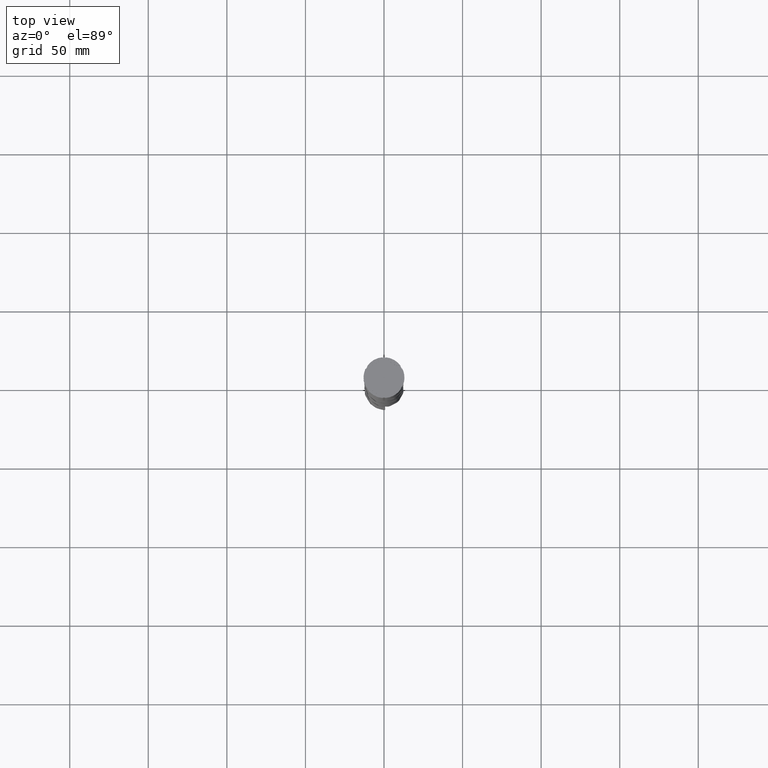
[diagram: clean part render]
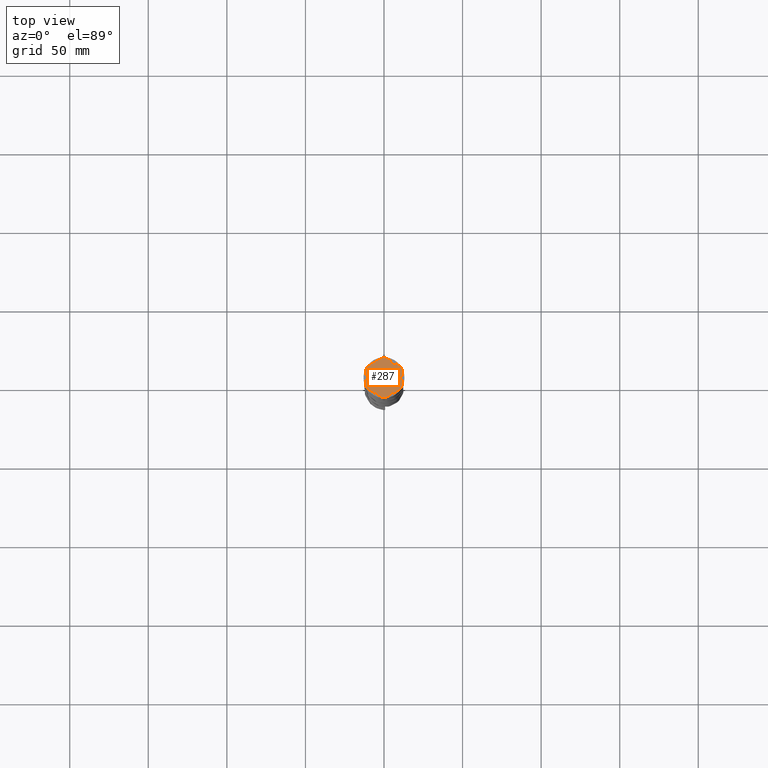
[diagram: same view with one face highlighted and labeled with its STEP entity id]
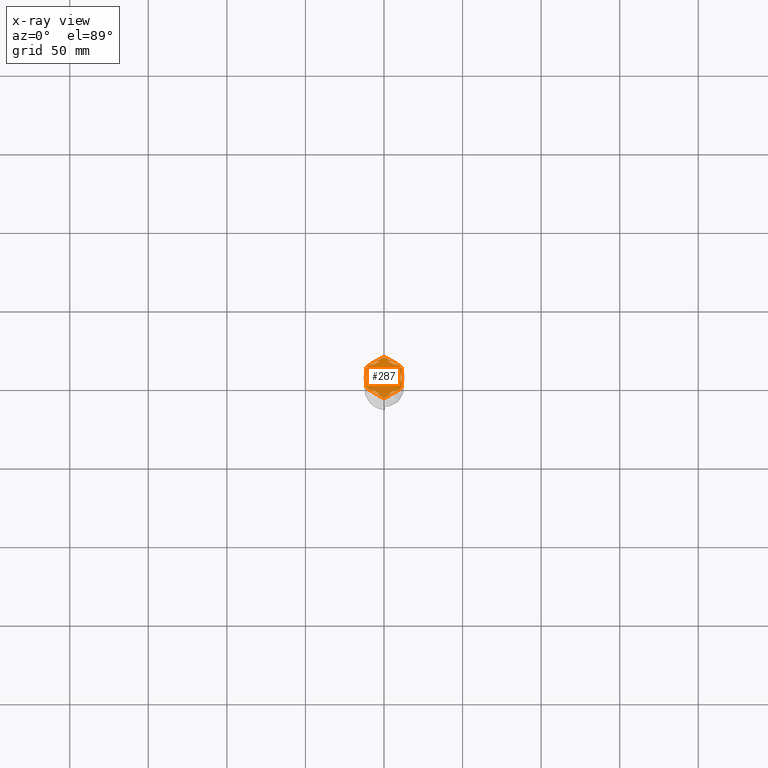
[diagram: x-ray of the same camera — body ghosted, the highlighted face saturated]
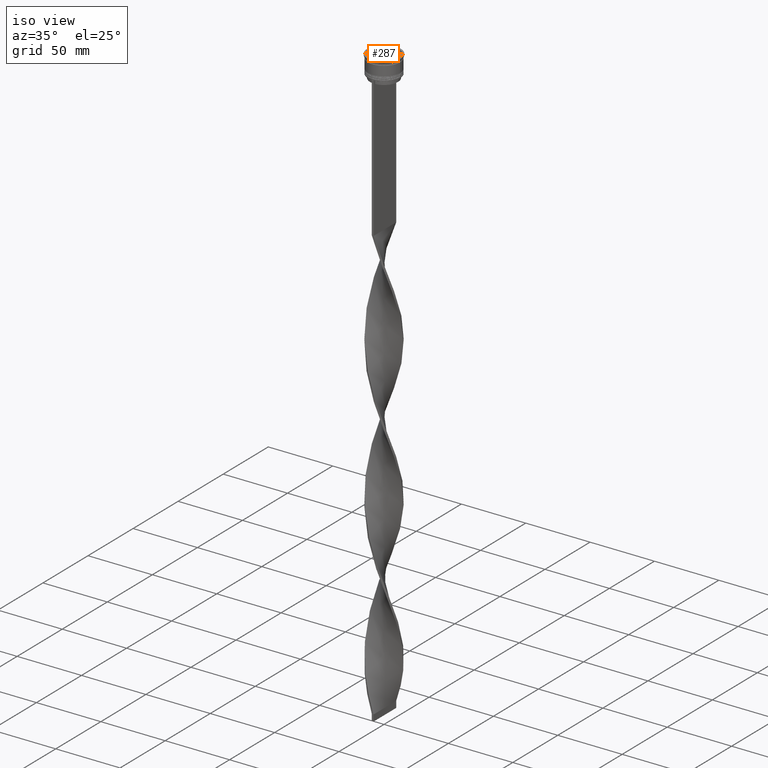
[diagram: same view with one face highlighted and labeled with its STEP entity id]
A machine part, top view. The second image highlights one B-rep face of the part: STEP entity #287.
The next image is the same camera in x-ray: the body ghosted, the highlighted face saturated — about 0% of this face is hidden behind the body in this view.
A second angle (iso view) of the same face is appended — the face is thin or edge-on in the first view.
In plain terms, the highlighted planar face has unit normal (0, 0, 1).
Its self-contained STEP definition (entity closure, byte-faithful):
#17 = ORIENTED_EDGE ( 'NONE', *, *, #30, .T. ) ;
#30 = EDGE_CURVE ( 'NONE', #3539, #4238, #3257, .T. ) ;
#39 = PLANE ( 'NONE',  #4548 ) ;
#42 = VECTOR ( 'NONE', #369, 1000.000000000000000 ) ;
#63 = EDGE_CURVE ( 'NONE', #3674, #2488, #780, .T. ) ;
#65 = VERTEX_POINT ( 'NONE', #2237 ) ;
#90 = CARTESIAN_POINT ( 'NONE',  ( -11.00000000000000000, 0.000000000000000000, -1.000000000000000000 ) ) ;
#95 = DIRECTION ( 'NONE',  ( -0.8660254037844388186, 0.4999999999999997224, 0.000000000000000000 ) ) ;
#129 = VERTEX_POINT ( 'NONE', #1174 ) ;
#150 = CARTESIAN_POINT ( 'NONE',  ( 5.612359739892467248E-18, -13.27905619136138959, -1.000000000000000000 ) ) ;
#169 = LINE ( 'NONE', #4427, #1408 ) ;
#229 = VERTEX_POINT ( 'NONE', #4228 ) ;
#287 = ADVANCED_FACE ( 'NONE', ( #3205, #3966, #2877, #1427, #3245, #4315, #3559 ), #39, .T. ) ;
#333 = CARTESIAN_POINT ( 'NONE',  ( 0.000000000000000000, 0.000000000000000000, -1.000000000000000000 ) ) ;
#335 = LINE ( 'NONE', #3954, #2450 ) ;
#349 = CIRCLE ( 'NONE', #3333, 11.00000000000000000 ) ;
#369 = DIRECTION ( 'NONE',  ( -0.8660254037844384856, 0.5000000000000002220, 0.000000000000000000 ) ) ;
#410 = VECTOR ( 'NONE', #95, 1000.000000000000000 ) ;
#468 = DIRECTION ( 'NONE',  ( 0.000000000000000000, 0.000000000000000000, 1.000000000000000000 ) ) ;
#469 = CARTESIAN_POINT ( 'NONE',  ( 0.000000000000000000, 0.000000000000000000, -1.000000000000000000 ) ) ;
#494 = CIRCLE ( 'NONE', #1020, 12.69999999999999929 ) ;
#497 = CARTESIAN_POINT ( 'NONE',  ( -2.410545827099867200, 10.73262637081210613, -1.000000000000000888 ) ) ;
#527 = DIRECTION ( 'NONE',  ( 0.000000000000000000, 0.000000000000000000, 1.000000000000000000 ) ) ;
#615 = ORIENTED_EDGE ( 'NONE', *, *, #3821, .F. ) ;
#627 = CARTESIAN_POINT ( 'NONE',  ( 0.000000000000000000, 0.000000000000000000, -1.000000000000000000 ) ) ;
#650 = VECTOR ( 'NONE', #2367, 999.9999999999998863 ) ;
#664 = CIRCLE ( 'NONE', #1250, 12.69999999999999929 ) ;
#690 = DIRECTION ( 'NONE',  ( 1.000000000000000000, 0.000000000000000000, 0.000000000000000000 ) ) ;
#736 = DIRECTION ( 'NONE',  ( 0.8660254037844385966, 0.5000000000000001110, -0.000000000000000000 ) ) ;
#762 = DIRECTION ( 'NONE',  ( 0.000000000000000000, 0.000000000000000000, 1.000000000000000000 ) ) ;
#780 = CIRCLE ( 'NONE', #1306, 12.69999999999999929 ) ;
#786 = DIRECTION ( 'NONE',  ( -0.000000000000000000, -0.000000000000000000, -1.000000000000000000 ) ) ;
#789 = EDGE_CURVE ( 'NONE', #4272, #984, #3487, .T. ) ;
#800 = DIRECTION ( 'NONE',  ( 1.000000000000000000, 0.000000000000000000, 0.000000000000000000 ) ) ;
#801 = DIRECTION ( 'NONE',  ( -0.000000000000000000, -0.000000000000000000, -1.000000000000000000 ) ) ;
#804 = CARTESIAN_POINT ( 'NONE',  ( 1.083095244168781557, 12.65373086058254160, -1.000000000000000000 ) ) ;
#829 = EDGE_CURVE ( 'NONE', #4317, #2312, #1676, .T. ) ;
#836 = VERTEX_POINT ( 'NONE', #2362 ) ;
#846 = LINE ( 'NONE', #150, #1996 ) ;
#868 = CIRCLE ( 'NONE', #2085, 12.69999999999999929 ) ;
#933 = EDGE_LOOP ( 'NONE', ( #2699, #615, #17, #3802, #1924, #2497, #1560, #1583, #1812, #4044, #3599, #4152 ) ) ;
#941 = AXIS2_PLACEMENT_3D ( 'NONE', #3367, #786, #1136 ) ;
#950 = EDGE_CURVE ( 'NONE', #2907, #836, #3083, .T. ) ;
#957 = AXIS2_PLACEMENT_3D ( 'NONE', #2406, #2050, #2687 ) ;
#984 = VERTEX_POINT ( 'NONE', #4174 ) ;
#985 = VERTEX_POINT ( 'NONE', #3388 ) ;
#988 = DIRECTION ( 'NONE',  ( 1.000000000000000000, 0.000000000000000000, 0.000000000000000000 ) ) ;
#995 = DIRECTION ( 'NONE',  ( 1.000000000000000000, 0.000000000000000000, 0.000000000000000000 ) ) ;
#1020 = AXIS2_PLACEMENT_3D ( 'NONE', #1103, #3594, #690 ) ;
#1072 = EDGE_CURVE ( 'NONE', #2841, #2312, #3032, .T. ) ;
#1103 = CARTESIAN_POINT ( 'NONE',  ( 0.000000000000000000, 0.000000000000000000, -1.000000000000000000 ) ) ;
#1133 = CARTESIAN_POINT ( 'NONE',  ( 0.000000000000000000, 0.000000000000000000, -1.000000000000000000 ) ) ;
#1136 = DIRECTION ( 'NONE',  ( 1.000000000000000000, 7.105427357601001859E-15, 0.000000000000000000 ) ) ;
#1165 = DIRECTION ( 'NONE',  ( -0.8660254037844387076, -0.4999999999999999445, 0.000000000000000000 ) ) ;
#1174 = CARTESIAN_POINT ( 'NONE',  ( 11.49999999999999822, 5.388877434122992582, -1.000000000000000000 ) ) ;
#1183 = ORIENTED_EDGE ( 'NONE', *, *, #1771, .F. ) ;
#1187 = VERTEX_POINT ( 'NONE', #3419 ) ;
#1236 = CIRCLE ( 'NONE', #2893, 11.00000000000000000 ) ;
#1250 = AXIS2_PLACEMENT_3D ( 'NONE', #3957, #3265, #2915 ) ;
#1272 = ORIENTED_EDGE ( 'NONE', *, *, #950, .F. ) ;
#1306 = AXIS2_PLACEMENT_3D ( 'NONE', #469, #801, #1608 ) ;
#1343 = ORIENTED_EDGE ( 'NONE', *, *, #2003, .F. ) ;
#1400 = VECTOR ( 'NONE', #1165, 999.9999999999998863 ) ;
#1408 = VECTOR ( 'NONE', #1508, 1000.000000000000114 ) ;
#1422 = LINE ( 'NONE', #4354, #42 ) ;
#1427 = FACE_BOUND ( 'NONE', #3433, .T. ) ;
#1436 = EDGE_CURVE ( 'NONE', #4317, #3310, #1908, .T. ) ;
#1437 = DIRECTION ( 'NONE',  ( 1.000000000000000000, 0.000000000000000000, 0.000000000000000000 ) ) ;
#1461 = AXIS2_PLACEMENT_3D ( 'NONE', #1931, #527, #4452 ) ;
#1466 = VERTEX_POINT ( 'NONE', #3929 ) ;
#1474 = DIRECTION ( 'NONE',  ( 1.000000000000000000, 0.000000000000000000, -0.000000000000000000 ) ) ;
#1495 = EDGE_CURVE ( 'NONE', #3674, #129, #4636, .T. ) ;
#1508 = DIRECTION ( 'NONE',  ( -0.8660254037844385966, -0.5000000000000001110, 0.000000000000000000 ) ) ;
#1509 = DIRECTION ( 'NONE',  ( 1.000000000000000000, 0.000000000000000000, 0.000000000000000000 ) ) ;
#1513 = CARTESIAN_POINT ( 'NONE',  ( -10.49999999999999822, 6.062177826491068622, -1.000000000000000888 ) ) ;
#1528 = CARTESIAN_POINT ( 'NONE',  ( -11.50000000000000000, 5.388877434122992582, -1.000000000000000000 ) ) ;
#1540 = EDGE_CURVE ( 'NONE', #65, #1466, #494, .T. ) ;
#1551 = CIRCLE ( 'NONE', #4563, 11.00000000000000000 ) ;
#1560 = ORIENTED_EDGE ( 'NONE', *, *, #829, .T. ) ;
#1583 = ORIENTED_EDGE ( 'NONE', *, *, #1072, .F. ) ;
#1608 = DIRECTION ( 'NONE',  ( 1.000000000000000000, 0.000000000000000000, 0.000000000000000000 ) ) ;
#1615 = AXIS2_PLACEMENT_3D ( 'NONE', #2763, #4193, #995 ) ;
#1676 = LINE ( 'NONE', #2692, #3247 ) ;
#1688 = CARTESIAN_POINT ( 'NONE',  ( -11.50000000000000000, -6.639528095680696573, -1.000000000000000000 ) ) ;
#1698 = EDGE_CURVE ( 'NONE', #3391, #1187, #349, .T. ) ;
#1739 = DIRECTION ( 'NONE',  ( -0.000000000000000000, -0.000000000000000000, -1.000000000000000000 ) ) ;
#1771 = EDGE_CURVE ( 'NONE', #2872, #4534, #1236, .T. ) ;
#1812 = ORIENTED_EDGE ( 'NONE', *, *, #3586, .T. ) ;
#1846 = VECTOR ( 'NONE', #3114, 1000.000000000000227 ) ;
#1908 = CIRCLE ( 'NONE', #2296, 12.69999999999999929 ) ;
#1924 = ORIENTED_EDGE ( 'NONE', *, *, #4038, .T. ) ;
#1931 = CARTESIAN_POINT ( 'NONE',  ( 0.000000000000000000, 0.000000000000000000, -1.000000000000000000 ) ) ;
#1996 = VECTOR ( 'NONE', #4428, 1000.000000000000114 ) ;
#2003 = EDGE_CURVE ( 'NONE', #985, #3318, #1422, .T. ) ;
#2011 = EDGE_CURVE ( 'NONE', #4649, #3744, #2962, .T. ) ;
#2050 = DIRECTION ( 'NONE',  ( 0.000000000000000000, 0.000000000000000000, 1.000000000000000000 ) ) ;
#2085 = AXIS2_PLACEMENT_3D ( 'NONE', #627, #3788, #4090 ) ;
#2096 = EDGE_CURVE ( 'NONE', #65, #2488, #846, .T. ) ;
#2228 = LINE ( 'NONE', #2991, #1400 ) ;
#2237 = CARTESIAN_POINT ( 'NONE',  ( 1.083095244168774673, -12.65373086058253982, -1.000000000000000000 ) ) ;
#2276 = LINE ( 'NONE', #3697, #3426 ) ;
#2296 = AXIS2_PLACEMENT_3D ( 'NONE', #333, #1739, #1437 ) ;
#2312 = VERTEX_POINT ( 'NONE', #3078 ) ;
#2345 = ORIENTED_EDGE ( 'NONE', *, *, #3548, .F. ) ;
#2362 = CARTESIAN_POINT ( 'NONE',  ( 8.089454172900138573, 7.453907108661105063, -1.000000000000000888 ) ) ;
#2367 = DIRECTION ( 'NONE',  ( 0.8660254037844387076, -0.4999999999999999445, 0.000000000000000000 ) ) ;
#2406 = CARTESIAN_POINT ( 'NONE',  ( 0.000000000000000000, 0.000000000000000000, -1.000000000000000000 ) ) ;
#2413 = EDGE_CURVE ( 'NONE', #3318, #985, #3643, .T. ) ;
#2423 = CARTESIAN_POINT ( 'NONE',  ( 2.410545827099861871, 10.73262637081210791, -1.000000000000000888 ) ) ;
#2442 = CARTESIAN_POINT ( 'NONE',  ( 10.41690475583121156, 7.264853426459550789, -1.000000000000000000 ) ) ;
#2450 = VECTOR ( 'NONE', #736, 1000.000000000000000 ) ;
#2487 = ORIENTED_EDGE ( 'NONE', *, *, #789, .F. ) ;
#2488 = VERTEX_POINT ( 'NONE', #2887 ) ;
#2497 = ORIENTED_EDGE ( 'NONE', *, *, #1436, .F. ) ;
#2549 = CARTESIAN_POINT ( 'NONE',  ( -10.49999999999999822, -3.278719262151000624, -1.000000000000000888 ) ) ;
#2552 = DIRECTION ( 'NONE',  ( 0.000000000000000000, 0.000000000000000000, 1.000000000000000000 ) ) ;
#2563 = VERTEX_POINT ( 'NONE', #4637 ) ;
#2652 = DIRECTION ( 'NONE',  ( 1.000000000000000000, 0.000000000000000000, 0.000000000000000000 ) ) ;
#2671 = EDGE_CURVE ( 'NONE', #984, #4272, #335, .T. ) ;
#2681 = VECTOR ( 'NONE', #4095, 1000.000000000000000 ) ;
#2687 = DIRECTION ( 'NONE',  ( 1.000000000000000000, 0.000000000000000000, 0.000000000000000000 ) ) ;
#2692 = CARTESIAN_POINT ( 'NONE',  ( -11.50000000000000000, 6.639528095680691244, -1.000000000000000000 ) ) ;
#2699 = ORIENTED_EDGE ( 'NONE', *, *, #1495, .T. ) ;
#2700 = ORIENTED_EDGE ( 'NONE', *, *, #2413, .F. ) ;
#2763 = CARTESIAN_POINT ( 'NONE',  ( 0.000000000000000000, 0.000000000000000000, -1.000000000000000000 ) ) ;
#2841 = VERTEX_POINT ( 'NONE', #4422 ) ;
#2872 = VERTEX_POINT ( 'NONE', #2931 ) ;
#2873 = CARTESIAN_POINT ( 'NONE',  ( 0.000000000000000000, 0.000000000000000000, -1.000000000000000000 ) ) ;
#2877 = FACE_BOUND ( 'NONE', #2901, .T. ) ;
#2887 = CARTESIAN_POINT ( 'NONE',  ( 10.41690475583121867, -7.264853426459537467, -1.000000000000000000 ) ) ;
#2893 = AXIS2_PLACEMENT_3D ( 'NONE', #4017, #468, #800 ) ;
#2901 = EDGE_LOOP ( 'NONE', ( #1183, #4298 ) ) ;
#2907 = VERTEX_POINT ( 'NONE', #2423 ) ;
#2915 = DIRECTION ( 'NONE',  ( 1.000000000000000000, -1.776356839400250465E-14, 0.000000000000000000 ) ) ;
#2919 = EDGE_CURVE ( 'NONE', #1187, #3391, #2276, .T. ) ;
#2931 = CARTESIAN_POINT ( 'NONE',  ( 2.410545827099865868, -10.73262637081210791, -1.000000000000000888 ) ) ;
#2962 = CIRCLE ( 'NONE', #3873, 11.00000000000000000 ) ;
#2978 = EDGE_CURVE ( 'NONE', #4534, #2872, #2228, .T. ) ;
#2991 = CARTESIAN_POINT ( 'NONE',  ( -2.602085213965210642E-15, -12.12435565298214080, -1.000000000000000888 ) ) ;
#2999 = EDGE_LOOP ( 'NONE', ( #2345, #4012, #3898 ) ) ;
#3032 = CIRCLE ( 'NONE', #941, 12.69999999999999929 ) ;
#3043 = EDGE_LOOP ( 'NONE', ( #3066, #4389 ) ) ;
#3066 = ORIENTED_EDGE ( 'NONE', *, *, #1698, .F. ) ;
#3078 = CARTESIAN_POINT ( 'NONE',  ( -11.50000000000000000, -5.388877434122992582, -1.000000000000000000 ) ) ;
#3083 = LINE ( 'NONE', #3746, #650 ) ;
#3114 = DIRECTION ( 'NONE',  ( 0.8660254037844387076, -0.4999999999999997780, 0.000000000000000000 ) ) ;
#3147 = CARTESIAN_POINT ( 'NONE',  ( -8.089454172900133244, -7.453907108661111280, -1.000000000000000888 ) ) ;
#3205 = FACE_BOUND ( 'NONE', #3792, .T. ) ;
#3225 = CARTESIAN_POINT ( 'NONE',  ( 0.000000000000000000, 0.000000000000000000, -1.000000000000000000 ) ) ;
#3227 = EDGE_CURVE ( 'NONE', #836, #2907, #3956, .T. ) ;
#3245 = FACE_BOUND ( 'NONE', #2999, .T. ) ;
#3247 = VECTOR ( 'NONE', #4091, 1000.000000000000000 ) ;
#3256 = DIRECTION ( 'NONE',  ( 1.306360520641008153E-16, 1.000000000000000000, 0.000000000000000000 ) ) ;
#3257 = LINE ( 'NONE', #3322, #410 ) ;
#3259 = VECTOR ( 'NONE', #3256, 1000.000000000000000 ) ;
#3265 = DIRECTION ( 'NONE',  ( -0.000000000000000000, -0.000000000000000000, -1.000000000000000000 ) ) ;
#3285 = DIRECTION ( 'NONE',  ( 0.000000000000000000, 0.000000000000000000, 1.000000000000000000 ) ) ;
#3310 = VERTEX_POINT ( 'NONE', #3782 ) ;
#3318 = VERTEX_POINT ( 'NONE', #3147 ) ;
#3322 = CARTESIAN_POINT ( 'NONE',  ( 11.50000000000000000, 6.639528095680698350, -1.000000000000000000 ) ) ;
#3333 = AXIS2_PLACEMENT_3D ( 'NONE', #4080, #3285, #2652 ) ;
#3367 = CARTESIAN_POINT ( 'NONE',  ( 0.000000000000000000, 0.000000000000000000, -1.000000000000000000 ) ) ;
#3388 = CARTESIAN_POINT ( 'NONE',  ( -2.410545827099876082, -10.73262637081210435, -1.000000000000000888 ) ) ;
#3391 = VERTEX_POINT ( 'NONE', #4281 ) ;
#3419 = CARTESIAN_POINT ( 'NONE',  ( 10.49999999999999467, 3.278719262151012170, -1.000000000000000888 ) ) ;
#3426 = VECTOR ( 'NONE', #3676, 1000.000000000000000 ) ;
#3433 = EDGE_LOOP ( 'NONE', ( #2700, #1343 ) ) ;
#3487 = CIRCLE ( 'NONE', #1461, 11.00000000000000000 ) ;
#3539 = VERTEX_POINT ( 'NONE', #2442 ) ;
#3548 = EDGE_CURVE ( 'NONE', #2563, #4649, #1551, .T. ) ;
#3559 = FACE_OUTER_BOUND ( 'NONE', #933, .T. ) ;
#3586 = EDGE_CURVE ( 'NONE', #2841, #1466, #3876, .T. ) ;
#3594 = DIRECTION ( 'NONE',  ( -0.000000000000000000, -0.000000000000000000, -1.000000000000000000 ) ) ;
#3599 = ORIENTED_EDGE ( 'NONE', *, *, #2096, .T. ) ;
#3643 = CIRCLE ( 'NONE', #1615, 11.00000000000000000 ) ;
#3674 = VERTEX_POINT ( 'NONE', #4311 ) ;
#3676 = DIRECTION ( 'NONE',  ( -1.430775808321104180E-16, -1.000000000000000000, 0.000000000000000000 ) ) ;
#3697 = CARTESIAN_POINT ( 'NONE',  ( 10.49999999999999289, -6.062177826491073063, -1.000000000000000888 ) ) ;
#3744 = VERTEX_POINT ( 'NONE', #2549 ) ;
#3746 = CARTESIAN_POINT ( 'NONE',  ( 10.49999999999999467, 6.062177826491072175, -1.000000000000000888 ) ) ;
#3781 = EDGE_CURVE ( 'NONE', #3744, #2563, #4404, .T. ) ;
#3782 = CARTESIAN_POINT ( 'NONE',  ( -10.41690475583121689, 7.264853426459546348, -1.000000000000000000 ) ) ;
#3788 = DIRECTION ( 'NONE',  ( -0.000000000000000000, -0.000000000000000000, -1.000000000000000000 ) ) ;
#3792 = EDGE_LOOP ( 'NONE', ( #4206, #1272 ) ) ;
#3802 = ORIENTED_EDGE ( 'NONE', *, *, #4481, .F. ) ;
#3821 = EDGE_CURVE ( 'NONE', #3539, #129, #664, .T. ) ;
#3873 = AXIS2_PLACEMENT_3D ( 'NONE', #2873, #762, #1509 ) ;
#3876 = LINE ( 'NONE', #1688, #1846 ) ;
#3898 = ORIENTED_EDGE ( 'NONE', *, *, #2011, .F. ) ;
#3929 = CARTESIAN_POINT ( 'NONE',  ( -1.083095244168779780, -12.65373086058253982, -1.000000000000000000 ) ) ;
#3954 = CARTESIAN_POINT ( 'NONE',  ( -1.734723475976807094E-15, 12.12435565298214080, -1.000000000000000888 ) ) ;
#3956 = CIRCLE ( 'NONE', #957, 11.00000000000000000 ) ;
#3957 = CARTESIAN_POINT ( 'NONE',  ( 0.000000000000000000, 0.000000000000000000, -1.000000000000000000 ) ) ;
#3966 = FACE_BOUND ( 'NONE', #3043, .T. ) ;
#4002 = DIRECTION ( 'NONE',  ( 0.000000000000000000, 0.000000000000000000, 1.000000000000000000 ) ) ;
#4012 = ORIENTED_EDGE ( 'NONE', *, *, #3781, .F. ) ;
#4017 = CARTESIAN_POINT ( 'NONE',  ( 0.000000000000000000, 0.000000000000000000, -1.000000000000000000 ) ) ;
#4038 = EDGE_CURVE ( 'NONE', #229, #3310, #169, .T. ) ;
#4044 = ORIENTED_EDGE ( 'NONE', *, *, #1540, .F. ) ;
#4080 = CARTESIAN_POINT ( 'NONE',  ( 0.000000000000000000, 0.000000000000000000, -1.000000000000000000 ) ) ;
#4090 = DIRECTION ( 'NONE',  ( 1.000000000000000000, 1.243449787580175325E-14, 0.000000000000000000 ) ) ;
#4091 = DIRECTION ( 'NONE',  ( 0.000000000000000000, -1.000000000000000000, 0.000000000000000000 ) ) ;
#4095 = DIRECTION ( 'NONE',  ( 0.000000000000000000, 1.000000000000000000, 0.000000000000000000 ) ) ;
#4152 = ORIENTED_EDGE ( 'NONE', *, *, #63, .F. ) ;
#4174 = CARTESIAN_POINT ( 'NONE',  ( -8.089454172900135021, 7.453907108661106840, -1.000000000000000888 ) ) ;
#4193 = DIRECTION ( 'NONE',  ( 0.000000000000000000, 0.000000000000000000, 1.000000000000000000 ) ) ;
#4206 = ORIENTED_EDGE ( 'NONE', *, *, #3227, .F. ) ;
#4228 = CARTESIAN_POINT ( 'NONE',  ( -1.083095244168783333, 12.65373086058254160, -1.000000000000000000 ) ) ;
#4238 = VERTEX_POINT ( 'NONE', #804 ) ;
#4272 = VERTEX_POINT ( 'NONE', #497 ) ;
#4281 = CARTESIAN_POINT ( 'NONE',  ( 10.49999999999999467, -3.278719262151014835, -1.000000000000000888 ) ) ;
#4298 = ORIENTED_EDGE ( 'NONE', *, *, #2978, .F. ) ;
#4311 = CARTESIAN_POINT ( 'NONE',  ( 11.49999999999999822, -5.388877434122996135, -1.000000000000000000 ) ) ;
#4315 = FACE_BOUND ( 'NONE', #4556, .T. ) ;
#4317 = VERTEX_POINT ( 'NONE', #1528 ) ;
#4354 = CARTESIAN_POINT ( 'NONE',  ( -10.49999999999999822, -6.062177826491068622, -1.000000000000000888 ) ) ;
#4389 = ORIENTED_EDGE ( 'NONE', *, *, #2919, .F. ) ;
#4404 = LINE ( 'NONE', #1513, #2681 ) ;
#4422 = CARTESIAN_POINT ( 'NONE',  ( -10.41690475583121334, -7.264853426459548125, -1.000000000000000000 ) ) ;
#4427 = CARTESIAN_POINT ( 'NONE',  ( 0.000000000000000000, 13.27905619136138959, -1.000000000000000000 ) ) ;
#4428 = DIRECTION ( 'NONE',  ( 0.8660254037844385966, 0.4999999999999999445, 0.000000000000000000 ) ) ;
#4451 = CARTESIAN_POINT ( 'NONE',  ( 8.089454172900135021, -7.453907108661109504, -1.000000000000000888 ) ) ;
#4452 = DIRECTION ( 'NONE',  ( 1.000000000000000000, 0.000000000000000000, 0.000000000000000000 ) ) ;
#4481 = EDGE_CURVE ( 'NONE', #229, #4238, #868, .T. ) ;
#4534 = VERTEX_POINT ( 'NONE', #4451 ) ;
#4548 = AXIS2_PLACEMENT_3D ( 'NONE', #3225, #2552, #1474 ) ;
#4556 = EDGE_LOOP ( 'NONE', ( #2487, #4576 ) ) ;
#4563 = AXIS2_PLACEMENT_3D ( 'NONE', #1133, #4002, #988 ) ;
#4576 = ORIENTED_EDGE ( 'NONE', *, *, #2671, .F. ) ;
#4610 = CARTESIAN_POINT ( 'NONE',  ( 11.49999999999999822, -6.639528095680694797, -1.000000000000000000 ) ) ;
#4636 = LINE ( 'NONE', #4610, #3259 ) ;
#4637 = CARTESIAN_POINT ( 'NONE',  ( -10.49999999999999822, 3.278719262151000624, -1.000000000000000888 ) ) ;
#4649 = VERTEX_POINT ( 'NONE', #90 ) ;